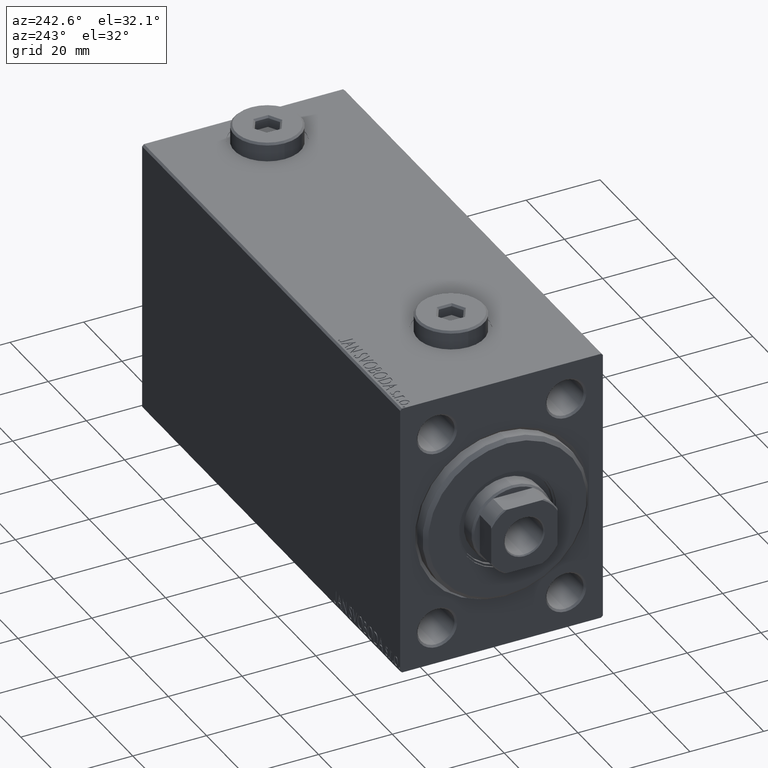
[diagram: clean part render]
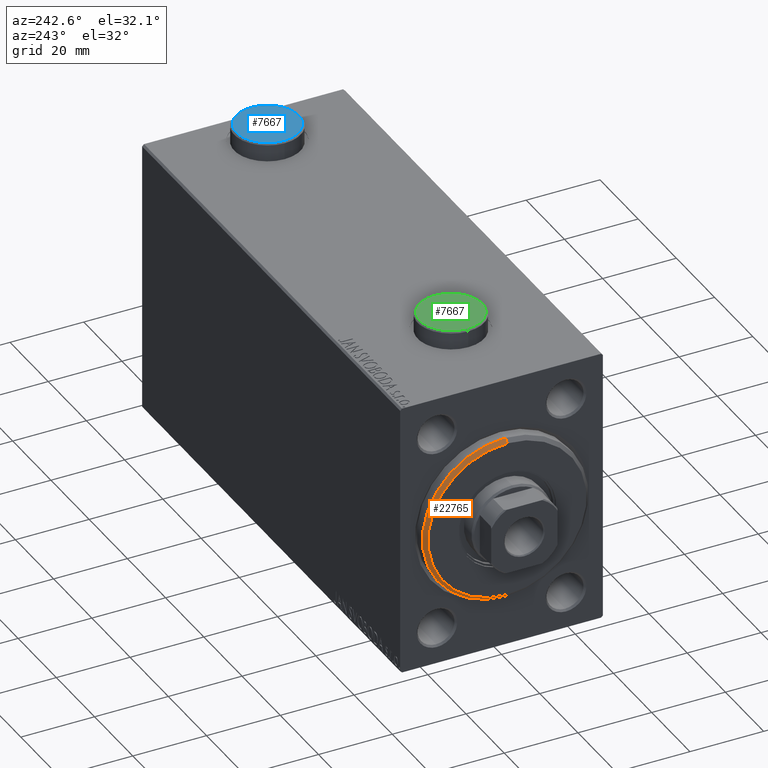
[diagram: same view with three faces highlighted in distinct colors, each labeled with its STEP entity id]
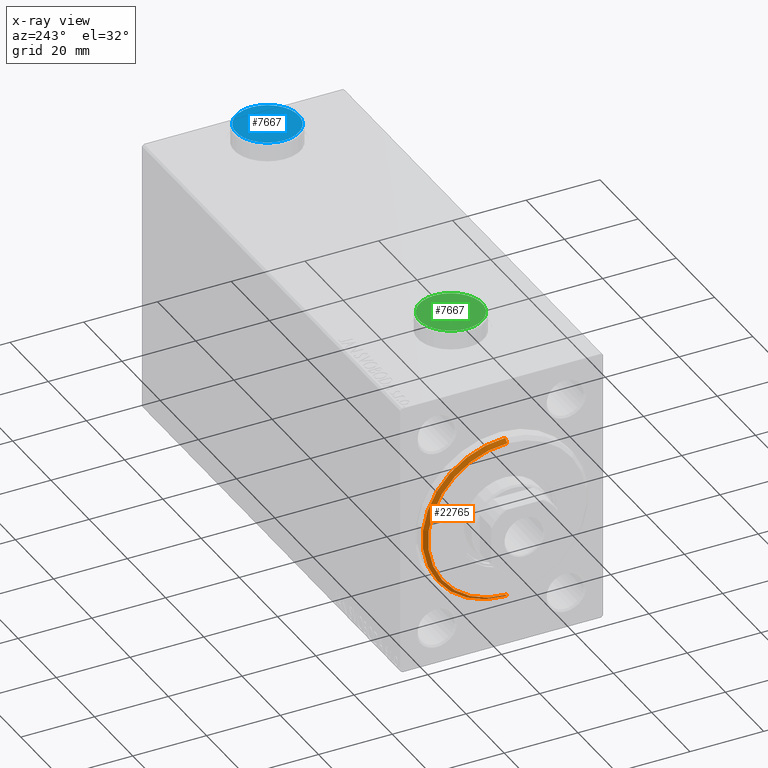
[diagram: x-ray of the same camera — body ghosted, the three highlighted faces saturated]
A machine part, auxiliary view with three faces highlighted in distinct colors.
The next image is the same camera in x-ray (body ghosted, the three faces saturated) — at least one of them is partly hidden behind the body in this view.
Their STEP definitions:

[orange] entity #22765 — the highlighted conical surface has half-angle 45 deg.
#3301 = DIRECTION ( 'NONE',  ( 0.000000000000000000, 0.000000000000000000, -1.000000000000000000 ) ) ;
#3693 = EDGE_LOOP ( 'NONE', ( #25091, #13820, #13990, #15404 ) ) ;
#3783 = VERTEX_POINT ( 'NONE', #32726 ) ;
#4530 = LINE ( 'NONE', #43269, #26834 ) ;
#6859 = CARTESIAN_POINT ( 'NONE',  ( 3.000000000000000000, 2.694222958124177598E-15, -21.50000000000000355 ) ) ;
#10752 = CARTESIAN_POINT ( 'NONE',  ( 1.999999999999999112, 0.000000000000000000, 22.50000000000000355 ) ) ;
#11337 = AXIS2_PLACEMENT_3D ( 'NONE', #34218, #34909, #3301 ) ;
#13475 = DIRECTION ( 'NONE',  ( -1.000000000000000000, 0.000000000000000000, 0.000000000000000000 ) ) ;
#13820 = ORIENTED_EDGE ( 'NONE', *, *, #38683, .F. ) ;
#13990 = ORIENTED_EDGE ( 'NONE', *, *, #24952, .T. ) ;
#15404 = ORIENTED_EDGE ( 'NONE', *, *, #31751, .F. ) ;
#17710 = AXIS2_PLACEMENT_3D ( 'NONE', #28241, #13475, #42280 ) ;
#18558 = VERTEX_POINT ( 'NONE', #10752 ) ;
#20656 = CONICAL_SURFACE ( 'NONE', #17710, 21.50000000000000355, 0.7853981633974466137 ) ;
#21261 = CARTESIAN_POINT ( 'NONE',  ( 3.000000000000000000, 0.000000000000000000, 0.000000000000000000 ) ) ;
#21944 = DIRECTION ( 'NONE',  ( 0.000000000000000000, 0.000000000000000000, -1.000000000000000000 ) ) ;
#22765 = ADVANCED_FACE ( 'NONE', ( #41612 ), #20656, .T. ) ;
#22980 = AXIS2_PLACEMENT_3D ( 'NONE', #21261, #39937, #21944 ) ;
#24952 = EDGE_CURVE ( 'NONE', #3783, #18558, #34911, .T. ) ;
#25091 = ORIENTED_EDGE ( 'NONE', *, *, #44808, .F. ) ;
#25750 = DIRECTION ( 'NONE',  ( -0.7071067811865487940, 8.659560562354919300E-17, -0.7071067811865463515 ) ) ;
#26834 = VECTOR ( 'NONE', #25750, 1000.000000000000000 ) ;
#28003 = DIRECTION ( 'NONE',  ( -0.7071067811865487940, 0.000000000000000000, 0.7071067811865463515 ) ) ;
#28241 = CARTESIAN_POINT ( 'NONE',  ( 3.000000000000000000, 0.000000000000000000, 0.000000000000000000 ) ) ;
#28622 = CARTESIAN_POINT ( 'NONE',  ( 1.999999999999999112, 2.755455298081545172E-15, -22.50000000000000355 ) ) ;
#31751 = EDGE_CURVE ( 'NONE', #40097, #18558, #36341, .T. ) ;
#32726 = CARTESIAN_POINT ( 'NONE',  ( 3.000000000000000000, 0.000000000000000000, 21.50000000000000355 ) ) ;
#34218 = CARTESIAN_POINT ( 'NONE',  ( 1.999999999999999112, 0.000000000000000000, 0.000000000000000000 ) ) ;
#34909 = DIRECTION ( 'NONE',  ( -1.000000000000000000, 0.000000000000000000, 0.000000000000000000 ) ) ;
#34911 = LINE ( 'NONE', #45487, #41326 ) ;
#36341 = CIRCLE ( 'NONE', #11337, 22.50000000000000355 ) ;
#38683 = EDGE_CURVE ( 'NONE', #3783, #44678, #39164, .T. ) ;
#39164 = CIRCLE ( 'NONE', #22980, 21.50000000000000355 ) ;
#39937 = DIRECTION ( 'NONE',  ( 1.000000000000000000, -0.000000000000000000, 0.000000000000000000 ) ) ;
#40097 = VERTEX_POINT ( 'NONE', #28622 ) ;
#41326 = VECTOR ( 'NONE', #28003, 1000.000000000000000 ) ;
#41612 = FACE_OUTER_BOUND ( 'NONE', #3693, .T. ) ;
#42280 = DIRECTION ( 'NONE',  ( 0.000000000000000000, 0.000000000000000000, 1.000000000000000000 ) ) ;
#43269 = CARTESIAN_POINT ( 'NONE',  ( 3.000000000000000000, 2.632990618166810024E-15, -21.50000000000000355 ) ) ;
#44678 = VERTEX_POINT ( 'NONE', #6859 ) ;
#44808 = EDGE_CURVE ( 'NONE', #44678, #40097, #4530, .T. ) ;
#45487 = CARTESIAN_POINT ( 'NONE',  ( 3.000000000000000000, 0.000000000000000000, 21.50000000000000355 ) ) ;

[blue] entity #7667 — the highlighted planar face has unit normal (0, 0, 1).
#609 = CARTESIAN_POINT ( 'NONE',  ( -3.500000000000006661, -2.020725942163694278, 5.000000000000000000 ) ) ;
#902 = CARTESIAN_POINT ( 'NONE',  ( 3.500000000000006661, -1.732050807568878303, 5.000000000000000000 ) ) ;
#1981 = CARTESIAN_POINT ( 'NONE',  ( 0.000000000000000000, 0.000000000000000000, 5.000000000000000000 ) ) ;
#3078 = DIRECTION ( 'NONE',  ( 0.000000000000000000, 1.000000000000000000, 0.000000000000000000 ) ) ;
#3770 = CIRCLE ( 'NONE', #27378, 8.500000000000010658 ) ;
#3782 = CARTESIAN_POINT ( 'NONE',  ( -0.2500000000000027756, 3.897114317029978459, 5.000000000000000000 ) ) ;
#3930 = AXIS2_PLACEMENT_3D ( 'NONE', #1981, #40717, #12808 ) ;
#5383 = CARTESIAN_POINT ( 'NONE',  ( 1.590596867181068292E-15, 4.041451884327386779, 5.000000000000000000 ) ) ;
#6688 = VECTOR ( 'NONE', #42076, 1000.000000000000000 ) ;
#6764 = CARTESIAN_POINT ( 'NONE',  ( -3.500000000000006661, 1.732050807568878081, 5.000000000000000000 ) ) ;
#7369 = LINE ( 'NONE', #25818, #35795 ) ;
#7667 = ADVANCED_FACE ( 'NONE', ( #7834, #21440 ), #43334, .T. ) ;
#7705 = EDGE_CURVE ( 'NONE', #38565, #43789, #7369, .T. ) ;
#7834 = FACE_BOUND ( 'NONE', #37667, .T. ) ;
#8240 = DIRECTION ( 'NONE',  ( 0.000000000000000000, 0.000000000000000000, 1.000000000000000000 ) ) ;
#8298 = DIRECTION ( 'NONE',  ( 1.000000000000000000, 0.000000000000000000, -0.000000000000000000 ) ) ;
#9192 = ORIENTED_EDGE ( 'NONE', *, *, #34858, .T. ) ;
#11672 = VECTOR ( 'NONE', #16706, 1000.000000000000000 ) ;
#12194 = LINE ( 'NONE', #902, #13983 ) ;
#12543 = VERTEX_POINT ( 'NONE', #32404 ) ;
#12784 = LINE ( 'NONE', #26867, #11672 ) ;
#12808 = DIRECTION ( 'NONE',  ( 1.000000000000000000, 0.000000000000000000, 0.000000000000000000 ) ) ;
#12886 = ORIENTED_EDGE ( 'NONE', *, *, #7705, .T. ) ;
#13334 = VERTEX_POINT ( 'NONE', #27385 ) ;
#13396 = CARTESIAN_POINT ( 'NONE',  ( 8.500000000000010658, 1.071565949253934716E-15, 5.000000000000000000 ) ) ;
#13603 = EDGE_CURVE ( 'NONE', #13334, #12543, #12784, .T. ) ;
#13983 = VECTOR ( 'NONE', #18415, 1000.000000000000000 ) ;
#14755 = ORIENTED_EDGE ( 'NONE', *, *, #34324, .T. ) ;
#16706 = DIRECTION ( 'NONE',  ( -0.8660254037844387076, -0.4999999999999998890, 0.000000000000000000 ) ) ;
#17371 = LINE ( 'NONE', #6764, #30477 ) ;
#18056 = CARTESIAN_POINT ( 'NONE',  ( -3.500000000000006661, 2.020725942163692945, 5.000000000000000000 ) ) ;
#18123 = AXIS2_PLACEMENT_3D ( 'NONE', #38961, #42658, #8298 ) ;
#18415 = DIRECTION ( 'NONE',  ( 0.000000000000000000, -1.000000000000000000, 0.000000000000000000 ) ) ;
#18617 = VERTEX_POINT ( 'NONE', #22503 ) ;
#19034 = EDGE_LOOP ( 'NONE', ( #34499, #19440 ) ) ;
#19282 = VERTEX_POINT ( 'NONE', #609 ) ;
#19440 = ORIENTED_EDGE ( 'NONE', *, *, #37336, .T. ) ;
#21440 = FACE_OUTER_BOUND ( 'NONE', #19034, .T. ) ;
#22300 = DIRECTION ( 'NONE',  ( 1.000000000000000000, 0.000000000000000000, 0.000000000000000000 ) ) ;
#22503 = CARTESIAN_POINT ( 'NONE',  ( -8.500000000000010658, 0.000000000000000000, 5.000000000000000000 ) ) ;
#23536 = ORIENTED_EDGE ( 'NONE', *, *, #40295, .T. ) ;
#25818 = CARTESIAN_POINT ( 'NONE',  ( 3.250000000000003109, 2.165063509461103042, 5.000000000000000000 ) ) ;
#25951 = ORIENTED_EDGE ( 'NONE', *, *, #13603, .T. ) ;
#26867 = CARTESIAN_POINT ( 'NONE',  ( 0.2500000000000027756, -3.897114317029979347, 5.000000000000000000 ) ) ;
#27378 = AXIS2_PLACEMENT_3D ( 'NONE', #39823, #8240, #22300 ) ;
#27385 = CARTESIAN_POINT ( 'NONE',  ( 3.500000000000006661, -2.020725942163693833, 5.000000000000000000 ) ) ;
#28041 = LINE ( 'NONE', #3782, #6688 ) ;
#28491 = VERTEX_POINT ( 'NONE', #13396 ) ;
#28844 = DIRECTION ( 'NONE',  ( 0.8660254037844387076, -0.4999999999999998890, 0.000000000000000000 ) ) ;
#30444 = DIRECTION ( 'NONE',  ( -0.8660254037844385966, 0.4999999999999999445, 0.000000000000000000 ) ) ;
#30477 = VECTOR ( 'NONE', #3078, 1000.000000000000000 ) ;
#30737 = CARTESIAN_POINT ( 'NONE',  ( 3.500000000000006661, 2.020725942163694722, 5.000000000000000000 ) ) ;
#31770 = EDGE_CURVE ( 'NONE', #19282, #41112, #17371, .T. ) ;
#31839 = VECTOR ( 'NONE', #30444, 1000.000000000000114 ) ;
#32404 = CARTESIAN_POINT ( 'NONE',  ( -1.006139216460143630E-15, -4.041451884327387667, 5.000000000000000000 ) ) ;
#33873 = CARTESIAN_POINT ( 'NONE',  ( -3.250000000000003109, -2.165063509461102598, 5.000000000000000000 ) ) ;
#34166 = CIRCLE ( 'NONE', #3930, 8.500000000000010658 ) ;
#34324 = EDGE_CURVE ( 'NONE', #43789, #13334, #12194, .T. ) ;
#34499 = ORIENTED_EDGE ( 'NONE', *, *, #43977, .T. ) ;
#34858 = EDGE_CURVE ( 'NONE', #41112, #38565, #28041, .T. ) ;
#35795 = VECTOR ( 'NONE', #28844, 1000.000000000000000 ) ;
#37336 = EDGE_CURVE ( 'NONE', #28491, #18617, #3770, .T. ) ;
#37667 = EDGE_LOOP ( 'NONE', ( #42199, #9192, #12886, #14755, #25951, #23536 ) ) ;
#38565 = VERTEX_POINT ( 'NONE', #5383 ) ;
#38961 = CARTESIAN_POINT ( 'NONE',  ( 0.000000000000000000, 0.000000000000000000, 5.000000000000000000 ) ) ;
#39823 = CARTESIAN_POINT ( 'NONE',  ( 0.000000000000000000, 0.000000000000000000, 5.000000000000000000 ) ) ;
#40295 = EDGE_CURVE ( 'NONE', #12543, #19282, #44019, .T. ) ;
#40717 = DIRECTION ( 'NONE',  ( 0.000000000000000000, 0.000000000000000000, 1.000000000000000000 ) ) ;
#41112 = VERTEX_POINT ( 'NONE', #18056 ) ;
#42076 = DIRECTION ( 'NONE',  ( 0.8660254037844387076, 0.4999999999999998335, 0.000000000000000000 ) ) ;
#42199 = ORIENTED_EDGE ( 'NONE', *, *, #31770, .T. ) ;
#42658 = DIRECTION ( 'NONE',  ( 0.000000000000000000, 0.000000000000000000, 1.000000000000000000 ) ) ;
#43334 = PLANE ( 'NONE',  #18123 ) ;
#43789 = VERTEX_POINT ( 'NONE', #30737 ) ;
#43977 = EDGE_CURVE ( 'NONE', #18617, #28491, #34166, .T. ) ;
#44019 = LINE ( 'NONE', #33873, #31839 ) ;

[green] entity #7667 — the highlighted planar face has unit normal (0, 0, 1).
#609 = CARTESIAN_POINT ( 'NONE',  ( -3.500000000000006661, -2.020725942163694278, 5.000000000000000000 ) ) ;
#902 = CARTESIAN_POINT ( 'NONE',  ( 3.500000000000006661, -1.732050807568878303, 5.000000000000000000 ) ) ;
#1981 = CARTESIAN_POINT ( 'NONE',  ( 0.000000000000000000, 0.000000000000000000, 5.000000000000000000 ) ) ;
#3078 = DIRECTION ( 'NONE',  ( 0.000000000000000000, 1.000000000000000000, 0.000000000000000000 ) ) ;
#3770 = CIRCLE ( 'NONE', #27378, 8.500000000000010658 ) ;
#3782 = CARTESIAN_POINT ( 'NONE',  ( -0.2500000000000027756, 3.897114317029978459, 5.000000000000000000 ) ) ;
#3930 = AXIS2_PLACEMENT_3D ( 'NONE', #1981, #40717, #12808 ) ;
#5383 = CARTESIAN_POINT ( 'NONE',  ( 1.590596867181068292E-15, 4.041451884327386779, 5.000000000000000000 ) ) ;
#6688 = VECTOR ( 'NONE', #42076, 1000.000000000000000 ) ;
#6764 = CARTESIAN_POINT ( 'NONE',  ( -3.500000000000006661, 1.732050807568878081, 5.000000000000000000 ) ) ;
#7369 = LINE ( 'NONE', #25818, #35795 ) ;
#7667 = ADVANCED_FACE ( 'NONE', ( #7834, #21440 ), #43334, .T. ) ;
#7705 = EDGE_CURVE ( 'NONE', #38565, #43789, #7369, .T. ) ;
#7834 = FACE_BOUND ( 'NONE', #37667, .T. ) ;
#8240 = DIRECTION ( 'NONE',  ( 0.000000000000000000, 0.000000000000000000, 1.000000000000000000 ) ) ;
#8298 = DIRECTION ( 'NONE',  ( 1.000000000000000000, 0.000000000000000000, -0.000000000000000000 ) ) ;
#9192 = ORIENTED_EDGE ( 'NONE', *, *, #34858, .T. ) ;
#11672 = VECTOR ( 'NONE', #16706, 1000.000000000000000 ) ;
#12194 = LINE ( 'NONE', #902, #13983 ) ;
#12543 = VERTEX_POINT ( 'NONE', #32404 ) ;
#12784 = LINE ( 'NONE', #26867, #11672 ) ;
#12808 = DIRECTION ( 'NONE',  ( 1.000000000000000000, 0.000000000000000000, 0.000000000000000000 ) ) ;
#12886 = ORIENTED_EDGE ( 'NONE', *, *, #7705, .T. ) ;
#13334 = VERTEX_POINT ( 'NONE', #27385 ) ;
#13396 = CARTESIAN_POINT ( 'NONE',  ( 8.500000000000010658, 1.071565949253934716E-15, 5.000000000000000000 ) ) ;
#13603 = EDGE_CURVE ( 'NONE', #13334, #12543, #12784, .T. ) ;
#13983 = VECTOR ( 'NONE', #18415, 1000.000000000000000 ) ;
#14755 = ORIENTED_EDGE ( 'NONE', *, *, #34324, .T. ) ;
#16706 = DIRECTION ( 'NONE',  ( -0.8660254037844387076, -0.4999999999999998890, 0.000000000000000000 ) ) ;
#17371 = LINE ( 'NONE', #6764, #30477 ) ;
#18056 = CARTESIAN_POINT ( 'NONE',  ( -3.500000000000006661, 2.020725942163692945, 5.000000000000000000 ) ) ;
#18123 = AXIS2_PLACEMENT_3D ( 'NONE', #38961, #42658, #8298 ) ;
#18415 = DIRECTION ( 'NONE',  ( 0.000000000000000000, -1.000000000000000000, 0.000000000000000000 ) ) ;
#18617 = VERTEX_POINT ( 'NONE', #22503 ) ;
#19034 = EDGE_LOOP ( 'NONE', ( #34499, #19440 ) ) ;
#19282 = VERTEX_POINT ( 'NONE', #609 ) ;
#19440 = ORIENTED_EDGE ( 'NONE', *, *, #37336, .T. ) ;
#21440 = FACE_OUTER_BOUND ( 'NONE', #19034, .T. ) ;
#22300 = DIRECTION ( 'NONE',  ( 1.000000000000000000, 0.000000000000000000, 0.000000000000000000 ) ) ;
#22503 = CARTESIAN_POINT ( 'NONE',  ( -8.500000000000010658, 0.000000000000000000, 5.000000000000000000 ) ) ;
#23536 = ORIENTED_EDGE ( 'NONE', *, *, #40295, .T. ) ;
#25818 = CARTESIAN_POINT ( 'NONE',  ( 3.250000000000003109, 2.165063509461103042, 5.000000000000000000 ) ) ;
#25951 = ORIENTED_EDGE ( 'NONE', *, *, #13603, .T. ) ;
#26867 = CARTESIAN_POINT ( 'NONE',  ( 0.2500000000000027756, -3.897114317029979347, 5.000000000000000000 ) ) ;
#27378 = AXIS2_PLACEMENT_3D ( 'NONE', #39823, #8240, #22300 ) ;
#27385 = CARTESIAN_POINT ( 'NONE',  ( 3.500000000000006661, -2.020725942163693833, 5.000000000000000000 ) ) ;
#28041 = LINE ( 'NONE', #3782, #6688 ) ;
#28491 = VERTEX_POINT ( 'NONE', #13396 ) ;
#28844 = DIRECTION ( 'NONE',  ( 0.8660254037844387076, -0.4999999999999998890, 0.000000000000000000 ) ) ;
#30444 = DIRECTION ( 'NONE',  ( -0.8660254037844385966, 0.4999999999999999445, 0.000000000000000000 ) ) ;
#30477 = VECTOR ( 'NONE', #3078, 1000.000000000000000 ) ;
#30737 = CARTESIAN_POINT ( 'NONE',  ( 3.500000000000006661, 2.020725942163694722, 5.000000000000000000 ) ) ;
#31770 = EDGE_CURVE ( 'NONE', #19282, #41112, #17371, .T. ) ;
#31839 = VECTOR ( 'NONE', #30444, 1000.000000000000114 ) ;
#32404 = CARTESIAN_POINT ( 'NONE',  ( -1.006139216460143630E-15, -4.041451884327387667, 5.000000000000000000 ) ) ;
#33873 = CARTESIAN_POINT ( 'NONE',  ( -3.250000000000003109, -2.165063509461102598, 5.000000000000000000 ) ) ;
#34166 = CIRCLE ( 'NONE', #3930, 8.500000000000010658 ) ;
#34324 = EDGE_CURVE ( 'NONE', #43789, #13334, #12194, .T. ) ;
#34499 = ORIENTED_EDGE ( 'NONE', *, *, #43977, .T. ) ;
#34858 = EDGE_CURVE ( 'NONE', #41112, #38565, #28041, .T. ) ;
#35795 = VECTOR ( 'NONE', #28844, 1000.000000000000000 ) ;
#37336 = EDGE_CURVE ( 'NONE', #28491, #18617, #3770, .T. ) ;
#37667 = EDGE_LOOP ( 'NONE', ( #42199, #9192, #12886, #14755, #25951, #23536 ) ) ;
#38565 = VERTEX_POINT ( 'NONE', #5383 ) ;
#38961 = CARTESIAN_POINT ( 'NONE',  ( 0.000000000000000000, 0.000000000000000000, 5.000000000000000000 ) ) ;
#39823 = CARTESIAN_POINT ( 'NONE',  ( 0.000000000000000000, 0.000000000000000000, 5.000000000000000000 ) ) ;
#40295 = EDGE_CURVE ( 'NONE', #12543, #19282, #44019, .T. ) ;
#40717 = DIRECTION ( 'NONE',  ( 0.000000000000000000, 0.000000000000000000, 1.000000000000000000 ) ) ;
#41112 = VERTEX_POINT ( 'NONE', #18056 ) ;
#42076 = DIRECTION ( 'NONE',  ( 0.8660254037844387076, 0.4999999999999998335, 0.000000000000000000 ) ) ;
#42199 = ORIENTED_EDGE ( 'NONE', *, *, #31770, .T. ) ;
#42658 = DIRECTION ( 'NONE',  ( 0.000000000000000000, 0.000000000000000000, 1.000000000000000000 ) ) ;
#43334 = PLANE ( 'NONE',  #18123 ) ;
#43789 = VERTEX_POINT ( 'NONE', #30737 ) ;
#43977 = EDGE_CURVE ( 'NONE', #18617, #28491, #34166, .T. ) ;
#44019 = LINE ( 'NONE', #33873, #31839 ) ;